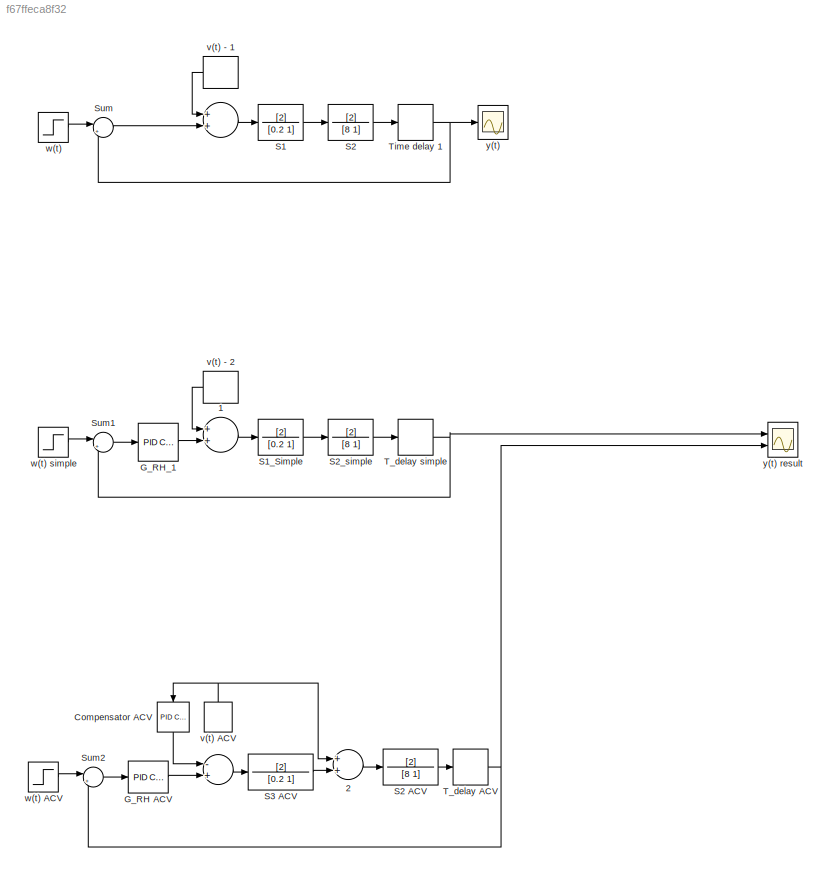
MODEL slx_f67ffeca8f32
KIND model
CONFIG AbsTol = auto
CONFIG EnableMultiTasking = off
CONFIG FixedStep = auto
CONFIG MaxStep = auto
CONFIG MinStep = auto
CONFIG RelTol = 1e-3
CONFIG SampleTimeConstraint = Unconstrained
CONFIG Solver = VariableStepAuto
CONFIG SolverName = VariableStepAuto
CONFIG StartTime = 0.0
CONFIG StopTime = 250
BLOCK [Sum]  
  InputSameDT = off
  OutDataTypeStr = Inherit: Inherit via internal rule
  Ports = [2, 1]
  SaturateOnIntegerOverflow = off
BLOCK [Sum]  1
  InputSameDT = off
  OutDataTypeStr = Inherit: Inherit via internal rule
  Ports = [2, 1]
  SaturateOnIntegerOverflow = off
BLOCK [Sum]  2
  InputSameDT = off
  OutDataTypeStr = Inherit: Inherit via internal rule
  Ports = [2, 1]
  SaturateOnIntegerOverflow = off
BLOCK [DiscretePulseGenerator]  v(t) - 1
  Amplitude = 0.5
  Period = 150
  PhaseDelay = 100
  Ports = [0, 1]
  PulseType = Time based
BLOCK [Reference] Compensator ACV  REF=simulink/Continuous/PID Controller
  Ports = [1, 1]
  SourceBlock = simulink/Continuous/PID Controller
  SourceProductBaseCode = SL
  SourceProductName = Simulink
  SourceType = PID 1dof
BLOCK [Reference] G_RH ACV  REF=simulink/Continuous/PID Controller
  Ports = [1, 1]
  SourceBlock = simulink/Continuous/PID Controller
  SourceProductBaseCode = SL
  SourceProductName = Simulink
  SourceType = PID 1dof
BLOCK [Reference] G_RH_1  REF=simulink/Continuous/PID Controller
  Ports = [1, 1]
  SourceBlock = simulink/Continuous/PID Controller
  SourceProductBaseCode = SL
  SourceProductName = Simulink
  SourceType = PID 1dof
BLOCK [TransferFcn] S1
  Denominator = [0.2 1]
  Numerator = [2]
BLOCK [TransferFcn] S1_Simple
  Denominator = [0.2 1]
  Numerator = [2]
BLOCK [TransferFcn] S2
  Denominator = [8 1]
  Numerator = [2]
BLOCK [TransferFcn] S2 ACV
  Denominator = [8 1]
  Numerator = [2]
BLOCK [TransferFcn] S2_simple
  Denominator = [8 1]
  Numerator = [2]
BLOCK [TransferFcn] S3 ACV
  Denominator = [0.2 1]
  Numerator = [2]
BLOCK [Sum] Sum
  IconShape = round
  InputSameDT = off
  Inputs = |+-
  OutDataTypeStr = Inherit: Inherit via internal rule
  Ports = [2, 1]
  SaturateOnIntegerOverflow = off
BLOCK [Sum] Sum1
  IconShape = round
  InputSameDT = off
  Inputs = |+-
  OutDataTypeStr = Inherit: Inherit via internal rule
  Ports = [2, 1]
  SaturateOnIntegerOverflow = off
BLOCK [Sum] Sum2
  IconShape = round
  InputSameDT = off
  Inputs = |+-
  OutDataTypeStr = Inherit: Inherit via internal rule
  Ports = [2, 1]
  SaturateOnIntegerOverflow = off
BLOCK [TransportDelay] T_delay ACV
  DelayTime = 6
  Ports = [1, 1]
BLOCK [TransportDelay] T_delay simple
  DelayTime = 6
  Ports = [1, 1]
BLOCK [TransportDelay] Time delay 1
  DelayTime = 6
  Ports = [1, 1]
BLOCK [DiscretePulseGenerator] v(t) - 2
  Amplitude = 0.5
  Period = 150
  PhaseDelay = 100
  Ports = [0, 1]
  PulseType = Time based
BLOCK [DiscretePulseGenerator] v(t) ACV
  Amplitude = 0.5
  Period = 150
  PhaseDelay = 100
  Ports = [0, 1]
  PulseType = Time based
BLOCK [Step] w(t)
  SampleTime = 0
BLOCK [Step] w(t) ACV
  SampleTime = 0
BLOCK [Step] w(t) simple
  SampleTime = 0
BLOCK [Scope] y(t)
  Floating = off
  NumInputPorts = 1
  Ports = [1]
  ScopeSpecificationString = Simulink.scopes.TimeScopeBlockCfg('CurrentConfiguration', extmgr.ConfigurationSet(extmgr.Configuration('Core','General UI',true),extmgr.Configuration('Core','Source UI',true),extmgr.Configuration('Sources','WiredSimulink',true),extmgr.Configuration('Visuals','Time Domain',true,'SerializedDisplays',{struct('MinYLimReal','-100','MaxYLimReal','100','YLabelReal','','MinYLimMag','0.00000','MaxYLimMag',...<+1441ch>
BLOCK [Scope] y(t) result
  Floating = off
  NumInputPorts = 2
  Ports = [2]
  ScopeSpecificationString = Simulink.scopes.TimeScopeBlockCfg('CurrentConfiguration', extmgr.ConfigurationSet(extmgr.Configuration('Core','General UI',true),extmgr.Configuration('Core','Source UI',true),extmgr.Configuration('Sources','WiredSimulink',true,'DataLoggingVariableName','ScopeData1'),extmgr.Configuration('Visuals','Time Domain',true,'SerializedDisplays',{struct('MinYLimReal','-0.20477','MaxYLimReal','1.84294','YLab...<+1510ch>
LINE  1:1 -> S1_Simple:1
LINE  2:1 -> S2 ACV:1
NET  :1 -> S1:1, S3 ACV:1
LINE  v(t) - 1:1 ->  :1
LINE Compensator ACV:1 ->  :1
LINE G_RH ACV:1 ->  :2
LINE G_RH_1:1 ->  1:2
LINE S1:1 -> S2:1
LINE S1_Simple:1 -> S2_simple:1
LINE S2 ACV:1 -> T_delay ACV:1
LINE S2:1 -> Time delay 1:1
LINE S2_simple:1 -> T_delay simple:1
LINE S3 ACV:1 ->  2:2
LINE Sum1:1 -> G_RH_1:1
LINE Sum2:1 -> G_RH ACV:1
LINE Sum:1 ->  :2
NET T_delay ACV:1 -> Sum2:2, y(t) result:2
NET T_delay simple:1 -> Sum1:2, y(t) result:1
NET Time delay 1:1 -> Sum:2, y(t):1
LINE v(t) - 2:1 ->  1:1
NET v(t) ACV:1 ->  2:1, Compensator ACV:1
LINE w(t) ACV:1 -> Sum2:1
LINE w(t) simple:1 -> Sum1:1
LINE w(t):1 -> Sum:1
note: NET lines group one-source signal fan-out (src -> all destinations, sorted); 1:1 wires keep LINE
